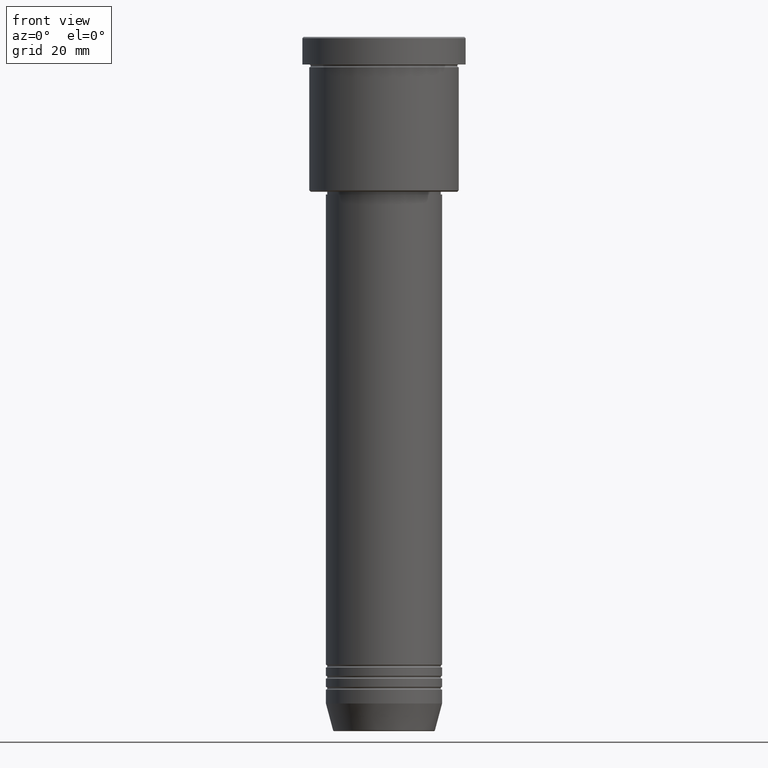
[diagram: clean part render]
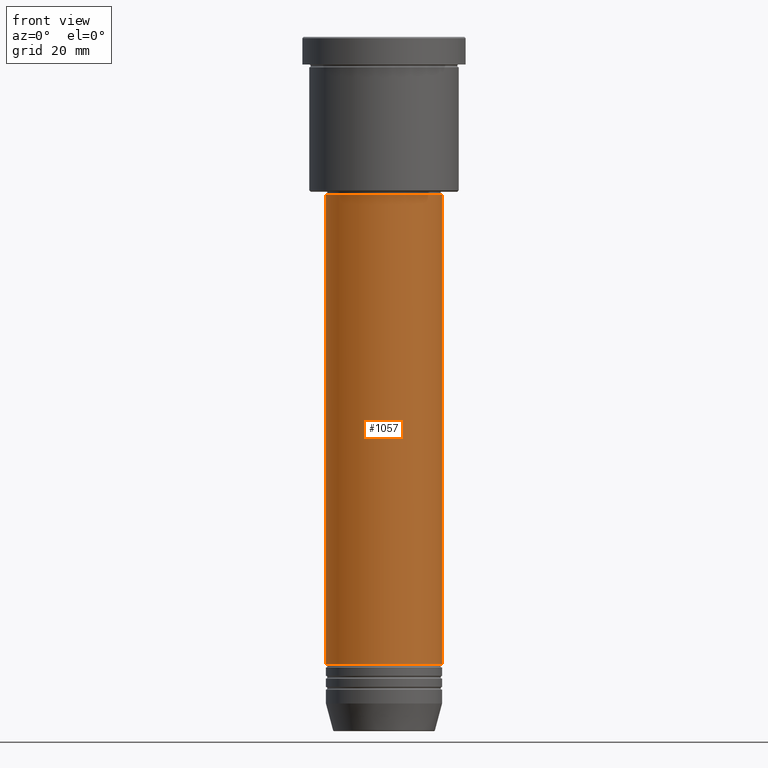
[diagram: same view with one face highlighted and labeled with its STEP entity id]
A machine part, front view. The second image highlights one B-rep face of the part: STEP entity #1057.
In plain terms, the highlighted cylindrical surface (partial cylindrical patch) has radius 21 mm, axis along (-0, -0, 1).
Its self-contained STEP definition (entity closure, byte-faithful):
#3 = CARTESIAN_POINT ( 'NONE',  ( 0.000000000000000000, 0.000000000000000000, -57.00000000000002842 ) ) ;
#44 = VERTEX_POINT ( 'NONE', #1158 ) ;
#58 = EDGE_CURVE ( 'NONE', #561, #44, #1128, .T. ) ;
#144 = EDGE_CURVE ( 'NONE', #852, #1037, #415, .T. ) ;
#156 = CARTESIAN_POINT ( 'NONE',  ( 0.000000000000000000, 0.000000000000000000, -226.9999999999998863 ) ) ;
#341 = CARTESIAN_POINT ( 'NONE',  ( -20.99999999999999645, 2.571758278209441267E-15, -57.00000000000002842 ) ) ;
#351 = DIRECTION ( 'NONE',  ( 1.000000000000000000, 0.000000000000000000, 0.000000000000000000 ) ) ;
#352 = CYLINDRICAL_SURFACE ( 'NONE', #946, 20.99999999999999645 ) ;
#415 = CIRCLE ( 'NONE', #1009, 20.99999999999999645 ) ;
#469 = ORIENTED_EDGE ( 'NONE', *, *, #506, .T. ) ;
#480 = LINE ( 'NONE', #687, #1092 ) ;
#481 = DIRECTION ( 'NONE',  ( -0.000000000000000000, -0.000000000000000000, 1.000000000000000000 ) ) ;
#503 = EDGE_LOOP ( 'NONE', ( #1055, #904, #469, #595 ) ) ;
#506 = EDGE_CURVE ( 'NONE', #44, #1037, #480, .T. ) ;
#531 = DIRECTION ( 'NONE',  ( -0.000000000000000000, -0.000000000000000000, 1.000000000000000000 ) ) ;
#542 = EDGE_CURVE ( 'NONE', #561, #852, #853, .T. ) ;
#561 = VERTEX_POINT ( 'NONE', #753 ) ;
#584 = CARTESIAN_POINT ( 'NONE',  ( -20.99999999999999645, 2.571758278209441267E-15, 0.000000000000000000 ) ) ;
#595 = ORIENTED_EDGE ( 'NONE', *, *, #144, .F. ) ;
#626 = AXIS2_PLACEMENT_3D ( 'NONE', #156, #531, #351 ) ;
#634 = DIRECTION ( 'NONE',  ( 1.000000000000000000, 0.000000000000000000, 0.000000000000000000 ) ) ;
#650 = DIRECTION ( 'NONE',  ( -0.000000000000000000, -0.000000000000000000, 1.000000000000000000 ) ) ;
#687 = CARTESIAN_POINT ( 'NONE',  ( 20.99999999999999645, 0.000000000000000000, 0.000000000000000000 ) ) ;
#716 = CARTESIAN_POINT ( 'NONE',  ( 0.000000000000000000, 0.000000000000000000, 0.000000000000000000 ) ) ;
#753 = CARTESIAN_POINT ( 'NONE',  ( -21.00000000000000000, 2.571758278209441661E-15, -226.9999999999998863 ) ) ;
#852 = VERTEX_POINT ( 'NONE', #341 ) ;
#853 = LINE ( 'NONE', #584, #1007 ) ;
#904 = ORIENTED_EDGE ( 'NONE', *, *, #58, .T. ) ;
#946 = AXIS2_PLACEMENT_3D ( 'NONE', #716, #650, #634 ) ;
#1007 = VECTOR ( 'NONE', #1035, 1000.000000000000000 ) ;
#1009 = AXIS2_PLACEMENT_3D ( 'NONE', #3, #481, #1117 ) ;
#1035 = DIRECTION ( 'NONE',  ( -0.000000000000000000, -0.000000000000000000, 1.000000000000000000 ) ) ;
#1037 = VERTEX_POINT ( 'NONE', #1168 ) ;
#1049 = DIRECTION ( 'NONE',  ( -0.000000000000000000, -0.000000000000000000, 1.000000000000000000 ) ) ;
#1055 = ORIENTED_EDGE ( 'NONE', *, *, #542, .F. ) ;
#1057 = ADVANCED_FACE ( 'NONE', ( #1165 ), #352, .T. ) ;
#1092 = VECTOR ( 'NONE', #1049, 1000.000000000000000 ) ;
#1117 = DIRECTION ( 'NONE',  ( 1.000000000000000000, 0.000000000000000000, 0.000000000000000000 ) ) ;
#1128 = CIRCLE ( 'NONE', #626, 21.00000000000000000 ) ;
#1158 = CARTESIAN_POINT ( 'NONE',  ( 21.00000000000000000, 0.000000000000000000, -226.9999999999998863 ) ) ;
#1165 = FACE_OUTER_BOUND ( 'NONE', #503, .T. ) ;
#1168 = CARTESIAN_POINT ( 'NONE',  ( 20.99999999999999645, 0.000000000000000000, -57.00000000000002842 ) ) ;